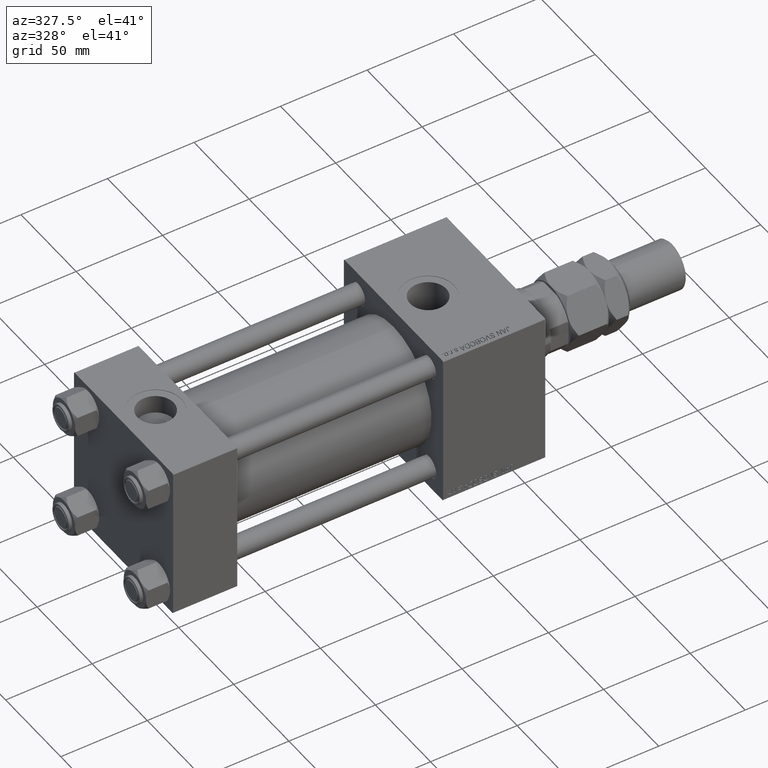
[diagram: clean part render]
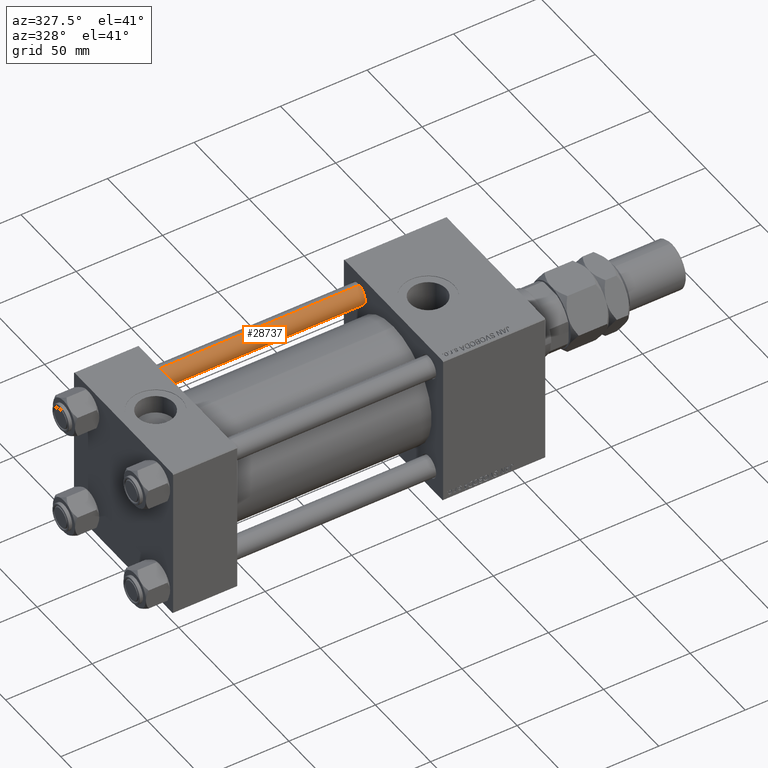
[diagram: same view with one face highlighted and labeled with its STEP entity id]
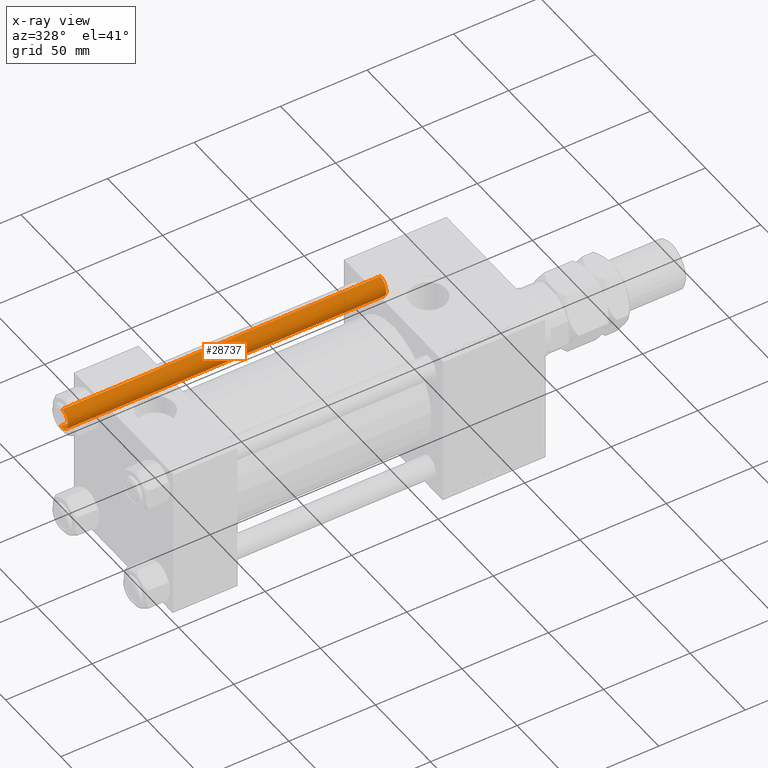
[diagram: x-ray of the same camera — body ghosted, the highlighted face saturated]
A machine part, auxiliary view. The second image highlights one B-rep face of the part: STEP entity #28737.
The next image is the same camera in x-ray: the body ghosted, the highlighted face saturated — about 0% of this face is hidden behind the body in this view.
In plain terms, the highlighted cylindrical surface (edge-blend (fillet) strip) has radius 6 mm, axis along (-1, 0, 0).
Its self-contained STEP definition (entity closure, byte-faithful):
#353 = VECTOR ( 'NONE', #50747, 1000.000000000000000 ) ;
#871 = ORIENTED_EDGE ( 'NONE', *, *, #48044, .T. ) ;
#2171 = ORIENTED_EDGE ( 'NONE', *, *, #17815, .T. ) ;
#2415 = DIRECTION ( 'NONE',  ( -0.000000000000000000, -0.000000000000000000, -1.000000000000000000 ) ) ;
#4307 = ORIENTED_EDGE ( 'NONE', *, *, #20289, .T. ) ;
#5378 = ORIENTED_EDGE ( 'NONE', *, *, #31576, .F. ) ;
#6543 = VECTOR ( 'NONE', #2415, 1000.000000000000000 ) ;
#7277 = VERTEX_POINT ( 'NONE', #34616 ) ;
#8700 = CARTESIAN_POINT ( 'NONE',  ( -6.000000000000000888, 0.000000000000000000, 0.5000000000000281997 ) ) ;
#10529 = CARTESIAN_POINT ( 'NONE',  ( 0.000000000000000000, 0.000000000000000000, 0.5000000000000281997 ) ) ;
#11185 = DIRECTION ( 'NONE',  ( -0.000000000000000000, -0.000000000000000000, -1.000000000000000000 ) ) ;
#12528 = CARTESIAN_POINT ( 'NONE',  ( 6.000000000000000888, 7.347880794884120722E-16, 0.5000000000000281997 ) ) ;
#13136 = DIRECTION ( 'NONE',  ( 0.000000000000000000, 0.000000000000000000, -1.000000000000000000 ) ) ;
#13924 = DIRECTION ( 'NONE',  ( 1.000000000000000000, 0.000000000000000000, 0.000000000000000000 ) ) ;
#17815 = EDGE_CURVE ( 'NONE', #45057, #7277, #46686, .T. ) ;
#19020 = AXIS2_PLACEMENT_3D ( 'NONE', #49328, #13136, #13924 ) ;
#20289 = EDGE_CURVE ( 'NONE', #7277, #24650, #31031, .T. ) ;
#20946 = CIRCLE ( 'NONE', #44386, 6.000000000000000888 ) ;
#24120 = EDGE_LOOP ( 'NONE', ( #5378, #2171, #4307, #871 ) ) ;
#24650 = VERTEX_POINT ( 'NONE', #8700 ) ;
#26085 = VERTEX_POINT ( 'NONE', #12528 ) ;
#26911 = CARTESIAN_POINT ( 'NONE',  ( 6.000000000000000888, 7.347880794884120722E-16, 185.0000000000000000 ) ) ;
#27206 = CYLINDRICAL_SURFACE ( 'NONE', #31400, 6.000000000000000888 ) ;
#28737 = ADVANCED_FACE ( 'NONE', ( #30106 ), #27206, .T. ) ;
#30106 = FACE_OUTER_BOUND ( 'NONE', #24120, .T. ) ;
#30321 = LINE ( 'NONE', #26911, #353 ) ;
#30780 = CARTESIAN_POINT ( 'NONE',  ( -6.000000000000000888, 0.000000000000000000, 185.0000000000000000 ) ) ;
#31031 = LINE ( 'NONE', #30780, #6543 ) ;
#31400 = AXIS2_PLACEMENT_3D ( 'NONE', #39019, #11185, #43196 ) ;
#31576 = EDGE_CURVE ( 'NONE', #45057, #26085, #30321, .T. ) ;
#34616 = CARTESIAN_POINT ( 'NONE',  ( -6.000000000000000888, 0.000000000000000000, 184.5000000000000000 ) ) ;
#39019 = CARTESIAN_POINT ( 'NONE',  ( 0.000000000000000000, 0.000000000000000000, 185.0000000000000000 ) ) ;
#41739 = CARTESIAN_POINT ( 'NONE',  ( 6.000000000000000888, 7.347880794884120722E-16, 184.5000000000000000 ) ) ;
#42272 = DIRECTION ( 'NONE',  ( 1.000000000000000000, 0.000000000000000000, 0.000000000000000000 ) ) ;
#43044 = DIRECTION ( 'NONE',  ( -0.000000000000000000, -0.000000000000000000, 1.000000000000000000 ) ) ;
#43196 = DIRECTION ( 'NONE',  ( -1.000000000000000000, 0.000000000000000000, 0.000000000000000000 ) ) ;
#44386 = AXIS2_PLACEMENT_3D ( 'NONE', #10529, #43044, #42272 ) ;
#45057 = VERTEX_POINT ( 'NONE', #41739 ) ;
#46686 = CIRCLE ( 'NONE', #19020, 6.000000000000000888 ) ;
#48044 = EDGE_CURVE ( 'NONE', #24650, #26085, #20946, .T. ) ;
#49328 = CARTESIAN_POINT ( 'NONE',  ( 0.000000000000000000, 0.000000000000000000, 184.5000000000000000 ) ) ;
#50747 = DIRECTION ( 'NONE',  ( -0.000000000000000000, -0.000000000000000000, -1.000000000000000000 ) ) ;